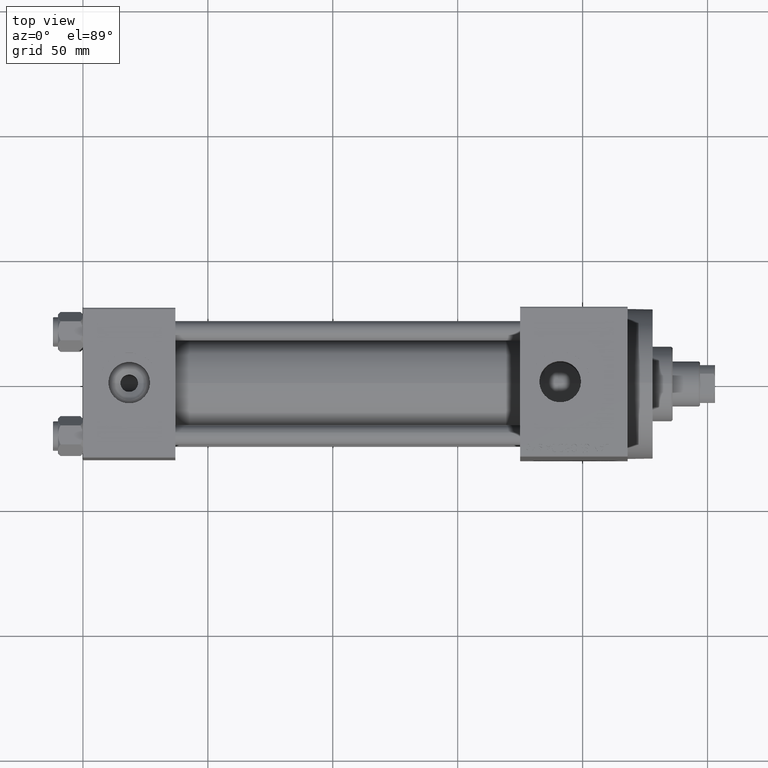
[diagram: clean part render]
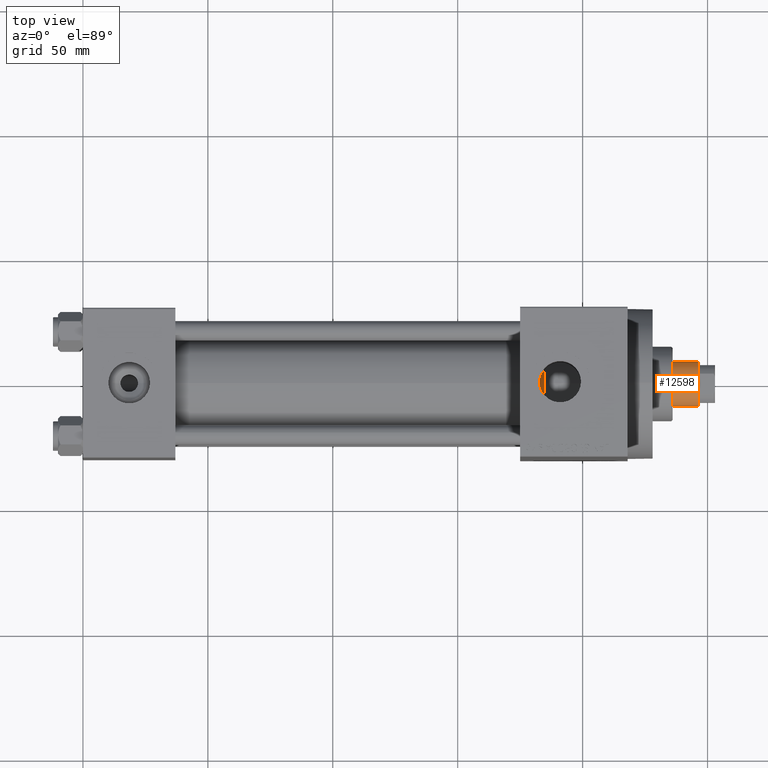
[diagram: same view with one face highlighted and labeled with its STEP entity id]
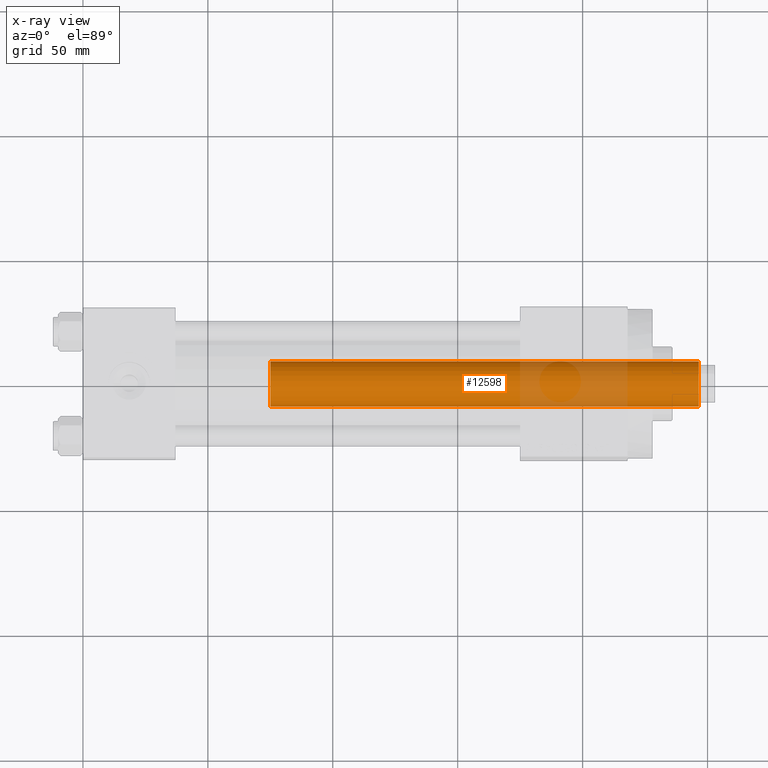
[diagram: x-ray of the same camera — body ghosted, the highlighted face saturated]
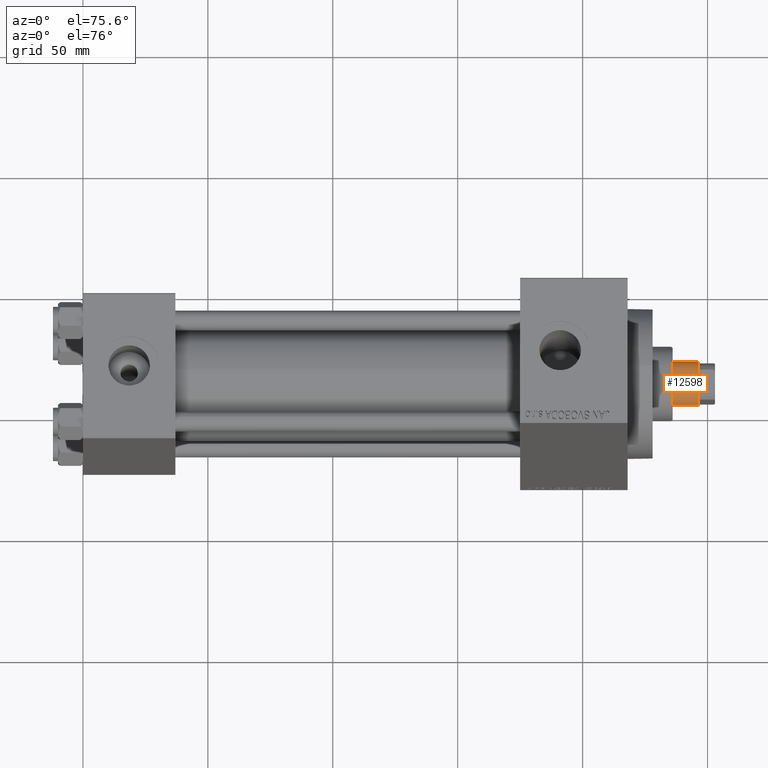
[diagram: same view with one face highlighted and labeled with its STEP entity id]
A machine part, top view. The second image highlights one B-rep face of the part: STEP entity #12598.
The next image is the same camera in x-ray: the body ghosted, the highlighted face saturated — about 18% of this face is hidden behind the body in this view.
A second angle (auxiliary view) of the same face is appended — the face is thin or edge-on in the first view.
In plain terms, the highlighted cylindrical surface (edge-blend (fillet) strip) has radius 9 mm, axis along (-1, 0, 0).
Its self-contained STEP definition (entity closure, byte-faithful):
#666 = VECTOR ( 'NONE', #8931, 1000.000000000000000 ) ;
#2546 = CARTESIAN_POINT ( 'NONE',  ( 0.000000000000000000, 0.000000000000000000, 38.00000000000000000 ) ) ;
#3894 = DIRECTION ( 'NONE',  ( 1.000000000000000000, 0.000000000000000000, 0.000000000000000000 ) ) ;
#3941 = FACE_OUTER_BOUND ( 'NONE', #32319, .T. ) ;
#4595 = AXIS2_PLACEMENT_3D ( 'NONE', #19230, #36756, #3894 ) ;
#4645 = CARTESIAN_POINT ( 'NONE',  ( 0.000000000000000000, 0.000000000000000000, 210.0000000000000000 ) ) ;
#8931 = DIRECTION ( 'NONE',  ( -0.000000000000000000, -0.000000000000000000, -1.000000000000000000 ) ) ;
#11273 = DIRECTION ( 'NONE',  ( -0.000000000000000000, -0.000000000000000000, -1.000000000000000000 ) ) ;
#11663 = VERTEX_POINT ( 'NONE', #23909 ) ;
#12259 = VERTEX_POINT ( 'NONE', #22471 ) ;
#12598 = ADVANCED_FACE ( 'NONE', ( #3941 ), #29600, .T. ) ;
#13382 = ORIENTED_EDGE ( 'NONE', *, *, #38033, .T. ) ;
#17636 = AXIS2_PLACEMENT_3D ( 'NONE', #2546, #27980, #28445 ) ;
#17978 = CARTESIAN_POINT ( 'NONE',  ( 9.000000000000000000, 1.102182119232617714E-15, 210.0000000000000000 ) ) ;
#19034 = DIRECTION ( 'NONE',  ( -1.000000000000000000, 0.000000000000000000, 0.000000000000000000 ) ) ;
#19230 = CARTESIAN_POINT ( 'NONE',  ( 0.000000000000000000, 0.000000000000000000, 209.5000000000000000 ) ) ;
#20773 = VERTEX_POINT ( 'NONE', #43845 ) ;
#22471 = CARTESIAN_POINT ( 'NONE',  ( 9.000000000000000000, 1.102182119232617714E-15, 209.5000000000000000 ) ) ;
#23909 = CARTESIAN_POINT ( 'NONE',  ( -9.000000000000000000, 0.000000000000000000, 209.5000000000000000 ) ) ;
#25274 = CIRCLE ( 'NONE', #4595, 9.000000000000000000 ) ;
#27618 = EDGE_CURVE ( 'NONE', #12259, #20773, #33098, .T. ) ;
#27980 = DIRECTION ( 'NONE',  ( 0.000000000000000000, 0.000000000000000000, 1.000000000000000000 ) ) ;
#28445 = DIRECTION ( 'NONE',  ( 1.000000000000000000, 0.000000000000000000, 0.000000000000000000 ) ) ;
#28455 = CARTESIAN_POINT ( 'NONE',  ( -9.000000000000000000, 0.000000000000000000, 38.00000000000000000 ) ) ;
#29139 = CIRCLE ( 'NONE', #17636, 9.000000000000000000 ) ;
#29600 = CYLINDRICAL_SURFACE ( 'NONE', #35642, 9.000000000000000000 ) ;
#30314 = EDGE_CURVE ( 'NONE', #11663, #38864, #31225, .T. ) ;
#30792 = ORIENTED_EDGE ( 'NONE', *, *, #37378, .T. ) ;
#31225 = LINE ( 'NONE', #45147, #666 ) ;
#32319 = EDGE_LOOP ( 'NONE', ( #41687, #30792, #35433, #13382 ) ) ;
#33098 = LINE ( 'NONE', #17978, #36553 ) ;
#35433 = ORIENTED_EDGE ( 'NONE', *, *, #30314, .T. ) ;
#35642 = AXIS2_PLACEMENT_3D ( 'NONE', #4645, #44232, #19034 ) ;
#36553 = VECTOR ( 'NONE', #11273, 1000.000000000000000 ) ;
#36756 = DIRECTION ( 'NONE',  ( 0.000000000000000000, 0.000000000000000000, -1.000000000000000000 ) ) ;
#37378 = EDGE_CURVE ( 'NONE', #12259, #11663, #25274, .T. ) ;
#38033 = EDGE_CURVE ( 'NONE', #38864, #20773, #29139, .T. ) ;
#38864 = VERTEX_POINT ( 'NONE', #28455 ) ;
#41687 = ORIENTED_EDGE ( 'NONE', *, *, #27618, .F. ) ;
#43845 = CARTESIAN_POINT ( 'NONE',  ( 9.000000000000000000, 1.102182119232617714E-15, 38.00000000000000000 ) ) ;
#44232 = DIRECTION ( 'NONE',  ( -0.000000000000000000, -0.000000000000000000, -1.000000000000000000 ) ) ;
#45147 = CARTESIAN_POINT ( 'NONE',  ( -9.000000000000000000, 0.000000000000000000, 210.0000000000000000 ) ) ;